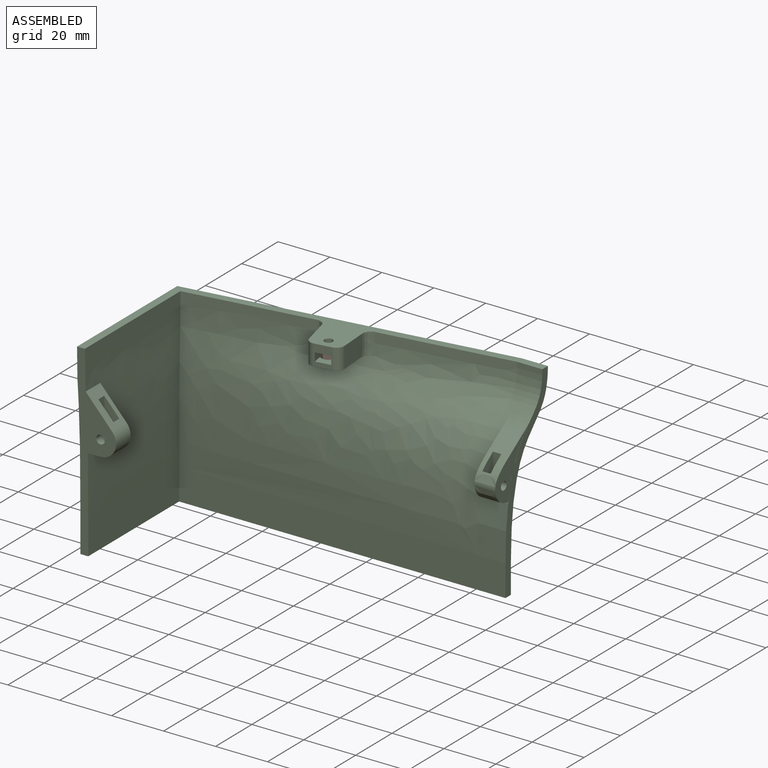
[diagram: assembled view]
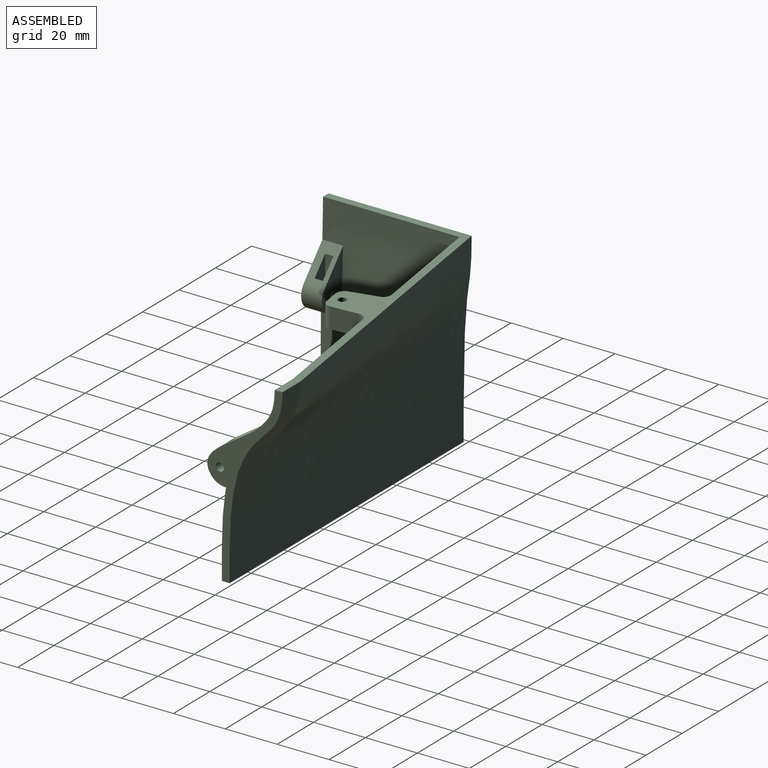
[diagram: assembled view, second angle]
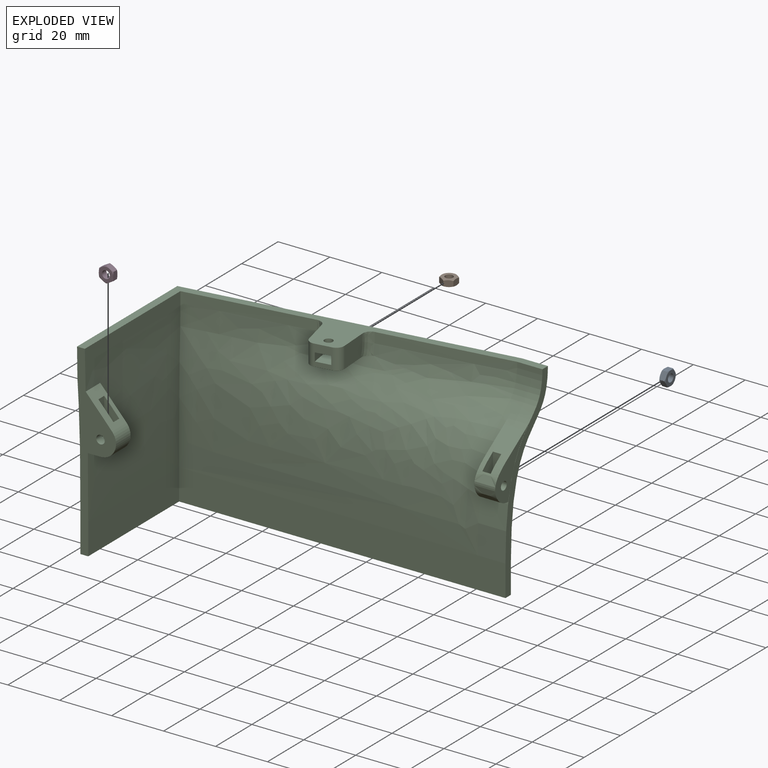
[diagram: exploded view]
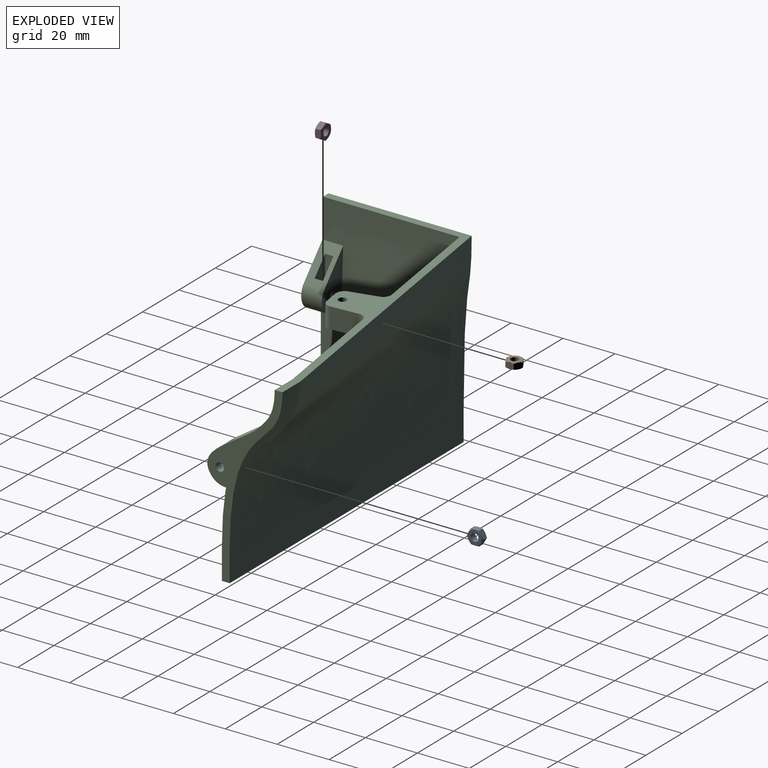
[diagram: exploded view, second angle]
ASSEMBLY  parts=4 mates=3
PART A: 21 faces, bbox 6.6x6.6x2.7 mm
  f0: plane 5.5x5.5mm, normal (0,0,1), area 16.7mm2, adj f2,f3,f4,f7,f9,f11,f13
  f1: plane 5.5x5.5mm, normal (0,0,-1), area 16.7mm2, adj f2,f5,f6,f8,f10,f12,f14
  f2: cylinder r=1.5mm len=3mm, axis (0,0,-1), area 22.6mm2, adj f0,f1
  f3: cone r=3.18mm half-angle=60deg, axis (0,0,-1), area 0.7mm2, adj f0,f15,f20
  f4: cone r=3.18mm half-angle=60deg, axis (0,0,-1), area 0.7mm2, adj f0,f15,f16
  f5: cone r=3.18mm half-angle=60deg, axis (0,0,1), area 0.7mm2, adj f1,f15,f20
  f6: cone r=3.18mm half-angle=60deg, axis (0,0,1), area 0.7mm2, adj f1,f15,f16
  f7: cone r=3.18mm half-angle=60deg, axis (0,0,-1), area 0.7mm2, adj f0,f16,f17
  f8: cone r=3.18mm half-angle=60deg, axis (0,0,1), area 0.7mm2, adj f1,f16,f17
  f9: cone r=3.18mm half-angle=60deg, axis (0,0,-1), area 0.7mm2, adj f0,f17,f18
  f10: cone r=3.18mm half-angle=60deg, axis (0,0,1), area 0.7mm2, adj f1,f17,f18
  f11: cone r=3.18mm half-angle=60deg, axis (0,0,-1), area 0.7mm2, adj f0,f18,f19
  f12: cone r=3.18mm half-angle=60deg, axis (0,0,1), area 0.7mm2, adj f1,f18,f19
  f13: cone r=3.18mm half-angle=60deg, axis (0,0,-1), area 0.7mm2, adj f0,f19,f20
  f14: cone r=3.18mm half-angle=60deg, axis (0,0,1), area 0.7mm2, adj f1,f19,f20
  f15: plane 3.01x2.67mm, normal (0.5,-0.87,0), area 7.1mm2, adj f3,f4,f5,f6,f16,f20
  f16: plane 3.01x2.67mm, normal (-0.5,-0.87,0), area 7.1mm2, adj f4,f6,f7,f8,f15,f17
  f17: plane 3.44x2.66mm, normal (-1,0,0), area 7.1mm2, adj f7,f8,f9,f10,f16,f18
  f18: plane 3.01x2.67mm, normal (-0.5,0.87,0), area 7.1mm2, adj f9,f10,f11,f12,f17,f19
  f19: plane 3.01x2.67mm, normal (0.5,0.87,0), area 7.1mm2, adj f11,f12,f13,f14,f18,f20
  f20: plane 3.44x2.66mm, normal (1,0,0), area 7.1mm2, adj f3,f5,f13,f14,f15,f19
PART B: same geometry as A
PART C: 57 faces, bbox 136.4x79.9x79.1 mm
  f0: cylinder r=1.6mm len=3.2mm, axis (0,0,1), area 16.1mm2, adj f25,f52
  f1: cylinder r=1.65mm len=3.3mm, axis (0,-1,0), area 18.7mm2, adj f35,f39
  f2: plane 11.18x10.15mm, normal (0.74,0,0.67), area 93.2mm2, adj f7,f34,f35,f37,f39,f40,f41,f42
  f3: offset ~65.9x61.17mm, area 2883.7mm2, adj f7,f8,f13,f34,f35,f36,f48
  f4: extruded ~23.97x19.56mm, area 277.4mm2, adj f6,f15,f16,f17,f18,f19,f20
  f5: cylinder r=1.6mm len=3.2mm, axis (1,0,0), area 18.1mm2, adj f15,f19
  f6: offset ~65.9x26.32mm, area 458.6mm2, adj f4,f8,f9,f13,f15,f16,f46
  f7: plane 75.42x18.55mm, normal (0,-1,0), area 360.8mm2, adj f2,f3,f8,f12,f36,f37,f38,f48
  f8: plane 130.12x73.41mm, normal (0,0,1), area 762mm2, adj f3,f6,f7,f9,f10,f11,f12,f13
  f9: bspline ~59.9x37.99mm, area 196.3mm2, adj f6,f8,f10,f45
  f10: bspline ~59.9x20.33mm, area 682.4mm2, adj f8,f9,f11,f50
  f11: bspline ~120.11x59.9mm, area 7392.8mm2, adj f8,f10,f12,f50
  f12: bspline ~59.9x55.17mm, area 3224.2mm2, adj f7,f8,f11,f49
  f13: offset ~127.31x65.9mm, area 7049.8mm2, adj f3,f6,f8,f25,f47,f53,f54
  f14: cylinder r=1.6mm len=3.2mm, axis (1,0,0), area 30.2mm2, adj f16,f20
  f15: plane 30.01x26.2mm, normal (-1,0,0), area 119.9mm2, adj f4,f5,f6
  f16: plane 30.01x26.2mm, normal (1,0,0), area 119.9mm2, adj f4,f6,f14
  f17: plane 10.81x3.2mm, normal (0,-1,0), area 34.6mm2, adj f4,f19,f20,f22
  f18: plane 6.17x3.2mm, normal (0,1,0), area 19.8mm2, adj f4,f19,f20,f21
  f19: plane 12.56x5.96mm, normal (1,0,0), area 47.1mm2, adj f4,f5,f17,f18,f21,f22
  f20: plane 12.56x5.96mm, normal (-1,0,0), area 47.1mm2, adj f4,f14,f17,f18,f21,f22
  f21: plane 3.2x2.9mm, normal (0,0.5,0.87), area 10.7mm2, adj f18,f19,f20,f22
  f22: plane 3.2x2.9mm, normal (0,-0.5,0.87), area 10.7mm2, adj f17,f19,f20,f21
  f23: plane 10.56x8mm, normal (-0.97,-0.24,0), area 85.5mm2, adj f8,f25,f53,f56
  f24: plane 10.84x8.01mm, normal (1,0.06,0), area 85mm2, adj f8,f25,f54,f55
  f25: plane 20.37x17.76mm, normal (0,0,-1), area 201.6mm2, adj f0,f13,f23,f24,f26,f53,f54,f55
  f26: plane 8x6.43mm, normal (0.15,-0.99,0), area 33.5mm2, adj f8,f25,f28,f29,f32,f33,f55,f56
  f27: cylinder r=1.6mm len=3.2mm, axis (0,0,1), area 30.2mm2, adj f8,f33
  f28: plane 5.61x3.2mm, normal (0.99,0.15,0), area 18.2mm2, adj f26,f31,f32,f33
  f29: plane 5.61x3.2mm, normal (-0.99,-0.15,0), area 18.2mm2, adj f26,f30,f32,f33
  f30: plane 3.2x3.12mm, normal (-0.36,-0.93,0), area 10.7mm2, adj f29,f31,f32,f33
  f31: plane 3.2x2.62mm, normal (0.62,-0.78,0), area 10.7mm2, adj f28,f30,f32,f33
  f32: plane 7.7x6.58mm, normal (0,0,1), area 37.8mm2, adj f26,f28,f29,f30,f31
  f33: plane 7.7x6.58mm, normal (0,0,-1), area 29.7mm2, adj f26,f27,f28,f29,f30,f31
  f34: plane 8x0.01mm, normal (-1,0,-0.04), area 0.1mm2, adj f2,f3,f35
  f35: plane 27.6x18.1mm, normal (0,1,0), area 145.1mm2, adj f1,f2,f3,f34,f36,f37
  f36: plane 8x4.88mm, normal (0,0,-1), area 39mm2, adj f3,f7,f35,f37
  f37: cylinder r=6mm len=10.03mm, axis (0,-1,0), area 110.8mm2, adj f2,f7,f35,f36
  f38: cylinder r=1.65mm len=3.3mm, axis (0,-1,0), area 31.1mm2, adj f7,f40
  f39: plane 15.47x5.8mm, normal (0,-1,0), area 57.8mm2, adj f1,f2,f41,f42,f43,f44
  f40: plane 15.47x5.8mm, normal (0,1,0), area 57.8mm2, adj f2,f38,f41,f42,f43,f44
  f41: plane 7.41x3.2mm, normal (-1,0,0), area 23.7mm2, adj f2,f39,f40,f44
  f42: plane 13.8x3.2mm, normal (1,0,0), area 44.1mm2, adj f2,f39,f40,f43
  f43: plane 3.2x2.9mm, normal (0.5,0,0.87), area 10.7mm2, adj f39,f40,f42,f44
  f44: plane 3.2x2.9mm, normal (-0.5,0,0.87), area 10.7mm2, adj f39,f40,f41,f43
  f45: plane 12x3mm, normal (1,0,0), area 36mm2, adj f9,f46,f50,f51
  f46: plane 12x10.74mm, normal (0,-1,0), area 128.9mm2, adj f6,f45,f47,f51
  f47: plane 115x12mm, normal (0,-1,0), area 1380mm2, adj f13,f46,f48,f51
  f48: plane 50x12mm, normal (1,0,0), area 600mm2, adj f3,f7,f47,f51
  f49: plane 53x12mm, normal (-1,0,0), area 636mm2, adj f7,f12,f50,f51
  f50: plane 128.74x12mm, normal (0,1,0), area 1544.9mm2, adj f10,f11,f45,f49,f51
  f51: plane 128.74x53mm, normal (0,0,-1), area 536.2mm2, adj f7,f45,f46,f47,f48,f49,f50
  f52: plane 3.2x3.2mm, normal (0,0,-1), area 8mm2, adj f0
  f53: bspline ~10.27x3.54mm, area 36mm2, adj f8,f13,f23,f25
  f54: bspline ~9.46x4.03mm, area 36.4mm2, adj f8,f13,f24,f25
  f55: cylinder r=3mm len=8mm, axis (0,0,-1), area 35.6mm2, adj f8,f24,f25,f26
  f56: cylinder r=3mm len=8mm, axis (0,0,-1), area 35.6mm2, adj f8,f23,f25,f26
PART D: same geometry as A
PLACE A rot(axis=(-0.71,0,-0.71),180deg) t=(-150.94,-2.02,-60.67)mm
PLACE B t=(-223.04,-2.03,-23.57)mm
PLACE C t=(-271.28,-1.02,-78.07)mm fixed
PLACE D rot(axis=(1,0,0),90deg) t=(-276.51,-45.77,-48.17)mm
MATE fastened A.f2 <-> C.f5  axis (-1,0,0) through (-148.54,-2.02,-50.67)mm
MATE fastened D.f2 <-> C.f1  axis (0,1,0) through (-266.51,-48.17,-48.17)mm
MATE fastened B.f2 <-> C.f0  axis (0,0,1) through (-213.04,-2.03,-21.17)mm
